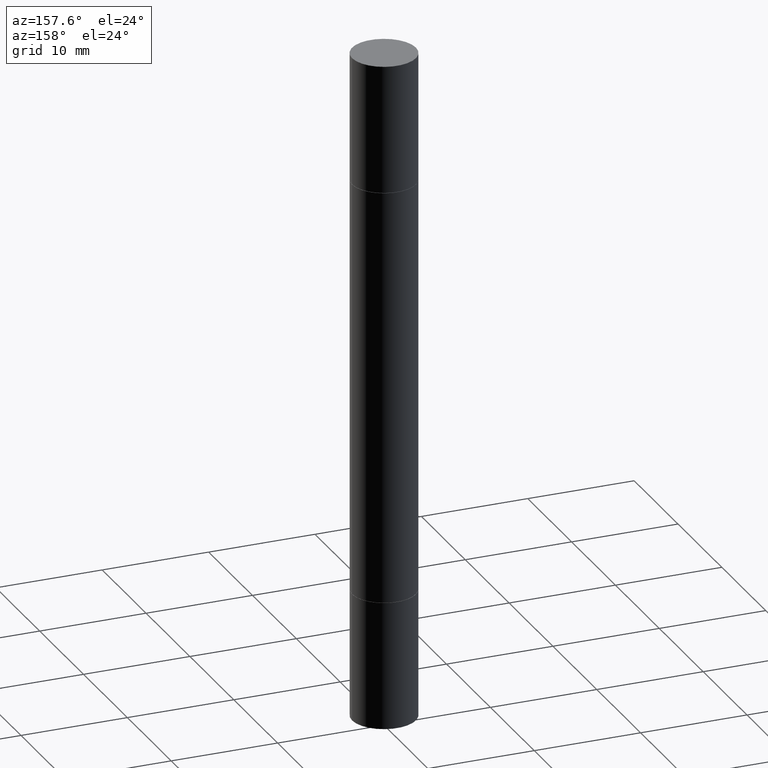
[diagram: clean part render]
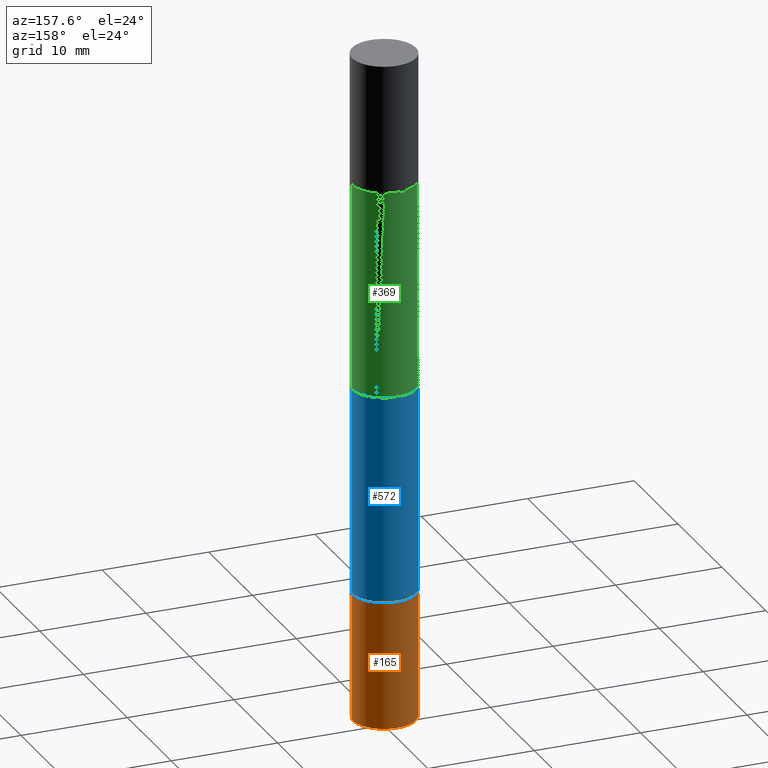
[diagram: same view with three faces highlighted in distinct colors, each labeled with its STEP entity id]
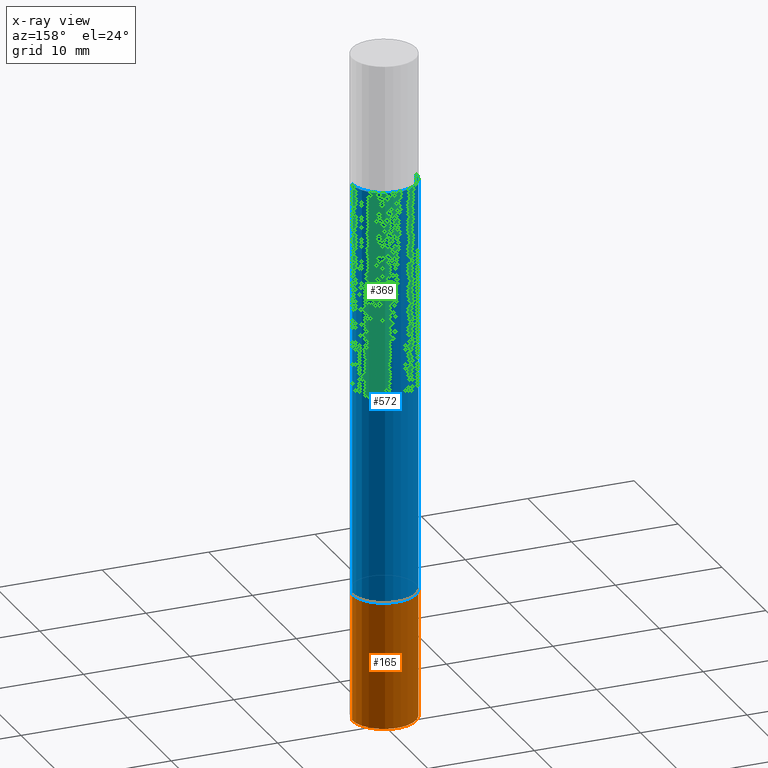
[diagram: x-ray of the same camera — body ghosted, the three highlighted faces saturated]
A machine part, auxiliary view with three faces highlighted in distinct colors.
The next image is the same camera in x-ray (body ghosted, the three faces saturated) — at least one of them is partly hidden behind the body in this view.
Their STEP definitions:

[orange] entity #165 — the highlighted cylindrical surface (edge-blend (fillet) strip) has radius 2.9997 mm, axis along (-0, 0, 1).
#55 = EDGE_CURVE ( 'NONE', #186, #389, #441, .T. ) ;
#103 = DIRECTION ( 'NONE',  ( 1.000000000000000000, -6.982962677686265133E-15, 0.000000000000000000 ) ) ;
#110 = ORIENTED_EDGE ( 'NONE', *, *, #537, .F. ) ;
#134 = VERTEX_POINT ( 'NONE', #655 ) ;
#142 = VERTEX_POINT ( 'NONE', #444 ) ;
#145 = CYLINDRICAL_SURFACE ( 'NONE', #428, 0.1180999999999999966 ) ;
#153 = AXIS2_PLACEMENT_3D ( 'NONE', #568, #675, #103 ) ;
#165 = ADVANCED_FACE ( 'NONE', ( #183 ), #145, .T. ) ;
#183 = FACE_OUTER_BOUND ( 'NONE', #236, .T. ) ;
#186 = VERTEX_POINT ( 'NONE', #562 ) ;
#206 = CARTESIAN_POINT ( 'NONE',  ( 0.1180999999999999966, -8.246878922347480654E-16, 5.758764772215000440E-30 ) ) ;
#236 = EDGE_LOOP ( 'NONE', ( #556, #288, #110, #511 ) ) ;
#244 = CIRCLE ( 'NONE', #518, 0.1180999999999999966 ) ;
#262 = VECTOR ( 'NONE', #419, 39.37007874015748143 ) ;
#282 = EDGE_CURVE ( 'NONE', #142, #134, #361, .T. ) ;
#286 = DIRECTION ( 'NONE',  ( -2.445468806185136597E-29, 3.491481338843145583E-15, 1.000000000000000000 ) ) ;
#288 = ORIENTED_EDGE ( 'NONE', *, *, #55, .T. ) ;
#353 = DIRECTION ( 'NONE',  ( 1.000000000000000000, -6.982962677686266711E-15, 4.876176775795936353E-29 ) ) ;
#361 = LINE ( 'NONE', #206, #262 ) ;
#389 = VERTEX_POINT ( 'NONE', #455 ) ;
#392 = CARTESIAN_POINT ( 'NONE',  ( 0.000000000000000000, 0.000000000000000000, 0.000000000000000000 ) ) ;
#419 = DIRECTION ( 'NONE',  ( -2.445468806185136877E-29, 3.491481338843145188E-15, 1.000000000000000000 ) ) ;
#427 = DIRECTION ( 'NONE',  ( -2.445468806185136597E-29, 3.491481338843145583E-15, 1.000000000000000000 ) ) ;
#428 = AXIS2_PLACEMENT_3D ( 'NONE', #392, #286, #353 ) ;
#441 = LINE ( 'NONE', #548, #629 ) ;
#444 = CARTESIAN_POINT ( 'NONE',  ( 0.1180999999999999966, -9.484609056967403598E-15, -2.480300000000000171 ) ) ;
#455 = CARTESIAN_POINT ( 'NONE',  ( -0.1180999999999999966, -6.996082301565225720E-15, -2.007900000000000240 ) ) ;
#461 = EDGE_CURVE ( 'NONE', #142, #186, #244, .T. ) ;
#477 = CARTESIAN_POINT ( 'NONE',  ( 6.065496279980994755E-29, -8.659921164732655335E-15, -2.480300000000000171 ) ) ;
#506 = DIRECTION ( 'NONE',  ( -2.445468806185136877E-29, 3.491481338843145188E-15, 1.000000000000000000 ) ) ;
#511 = ORIENTED_EDGE ( 'NONE', *, *, #282, .F. ) ;
#518 = AXIS2_PLACEMENT_3D ( 'NONE', #477, #427, #639 ) ;
#537 = EDGE_CURVE ( 'NONE', #134, #389, #667, .T. ) ;
#548 = CARTESIAN_POINT ( 'NONE',  ( -0.1180999999999999966, 8.391509709326782957E-16, -5.809262341591043784E-30 ) ) ;
#556 = ORIENTED_EDGE ( 'NONE', *, *, #461, .T. ) ;
#562 = CARTESIAN_POINT ( 'NONE',  ( -0.1180999999999999966, -6.996082301565225720E-15, -2.480300000000000171 ) ) ;
#568 = CARTESIAN_POINT ( 'NONE',  ( 4.910256815939136430E-29, -7.010545380263152499E-15, -2.007900000000000240 ) ) ;
#629 = VECTOR ( 'NONE', #506, 39.37007874015748143 ) ;
#639 = DIRECTION ( 'NONE',  ( 1.000000000000000000, -6.982962677686273021E-15, 0.000000000000000000 ) ) ;
#655 = CARTESIAN_POINT ( 'NONE',  ( 0.1180999999999999966, -7.835233272497900762E-15, -2.007900000000000240 ) ) ;
#667 = CIRCLE ( 'NONE', #153, 0.1180999999999999966 ) ;
#675 = DIRECTION ( 'NONE',  ( -2.445468806185136597E-29, 3.491481338843145583E-15, 1.000000000000000000 ) ) ;

[blue] entity #572 — the highlighted cylindrical surface (edge-blend (fillet) strip) has radius 2.9997 mm, axis along (-0, -0, -1).
#3 = CARTESIAN_POINT ( 'NONE',  ( 4.907811347132950827E-29, -7.007053898924308703E-15, -2.006899999999999906 ) ) ;
#17 = CARTESIAN_POINT ( 'NONE',  ( 0.1180999999999999966, -2.476474751543767778E-15, -0.4733999999999996544 ) ) ;
#23 = DIRECTION ( 'NONE',  ( -2.445468806185136597E-29, -3.492890411551752677E-15, -1.000000000000000000 ) ) ;
#64 = EDGE_CURVE ( 'NONE', #489, #509, #90, .T. ) ;
#90 = LINE ( 'NONE', #406, #170 ) ;
#93 = CARTESIAN_POINT ( 'NONE',  ( 4.907811347132950827E-29, -1.651786859309018332E-15, -0.4733999999999996544 ) ) ;
#101 = AXIS2_PLACEMENT_3D ( 'NONE', #3, #115, #366 ) ;
#115 = DIRECTION ( 'NONE',  ( -2.445468806185136597E-29, 3.491481338843145583E-15, 1.000000000000000000 ) ) ;
#137 = ORIENTED_EDGE ( 'NONE', *, *, #64, .T. ) ;
#146 = CIRCLE ( 'NONE', #101, 0.1180999999999999966 ) ;
#162 = LINE ( 'NONE', #381, #388 ) ;
#163 = CARTESIAN_POINT ( 'NONE',  ( 0.000000000000000000, -8.661668626252231138E-15, -2.480299999999999727 ) ) ;
#170 = VECTOR ( 'NONE', #468, 39.37007874015748143 ) ;
#172 = AXIS2_PLACEMENT_3D ( 'NONE', #93, #449, #665 ) ;
#197 = EDGE_LOOP ( 'NONE', ( #306, #336, #137, #437 ) ) ;
#219 = CARTESIAN_POINT ( 'NONE',  ( 0.1180999999999999966, -7.831741791159056177E-15, -2.006899999999999906 ) ) ;
#222 = EDGE_CURVE ( 'NONE', #489, #300, #579, .T. ) ;
#249 = EDGE_CURVE ( 'NONE', #509, #439, #146, .T. ) ;
#265 = FACE_OUTER_BOUND ( 'NONE', #197, .T. ) ;
#300 = VERTEX_POINT ( 'NONE', #322 ) ;
#306 = ORIENTED_EDGE ( 'NONE', *, *, #582, .F. ) ;
#322 = CARTESIAN_POINT ( 'NONE',  ( -0.1180999999999999966, -8.415620457722018772E-16, -0.4733999999999996544 ) ) ;
#330 = DIRECTION ( 'NONE',  ( -2.445468806185136877E-29, -3.492890411551753071E-15, -1.000000000000000000 ) ) ;
#336 = ORIENTED_EDGE ( 'NONE', *, *, #222, .F. ) ;
#366 = DIRECTION ( 'NONE',  ( 1.000000000000000000, -6.982962677686265133E-15, 0.000000000000000000 ) ) ;
#381 = CARTESIAN_POINT ( 'NONE',  ( -0.1180999999999998856, -7.851443812715415176E-15, -2.480299999999999727 ) ) ;
#388 = VECTOR ( 'NONE', #330, 39.37007874015748143 ) ;
#406 = CARTESIAN_POINT ( 'NONE',  ( 0.1180999999999998856, -9.486356518486979401E-15, -2.480299999999999727 ) ) ;
#437 = ORIENTED_EDGE ( 'NONE', *, *, #249, .T. ) ;
#439 = VERTEX_POINT ( 'NONE', #644 ) ;
#449 = DIRECTION ( 'NONE',  ( 2.445468806185136597E-29, 3.492890411551752677E-15, 1.000000000000000000 ) ) ;
#466 = AXIS2_PLACEMENT_3D ( 'NONE', #163, #23, #479 ) ;
#468 = DIRECTION ( 'NONE',  ( -2.445468806185136877E-29, -3.492890411551753071E-15, -1.000000000000000000 ) ) ;
#479 = DIRECTION ( 'NONE',  ( 1.000000000000000000, -6.982962677686271444E-15, 0.000000000000000000 ) ) ;
#489 = VERTEX_POINT ( 'NONE', #17 ) ;
#509 = VERTEX_POINT ( 'NONE', #219 ) ;
#572 = ADVANCED_FACE ( 'NONE', ( #265 ), #643, .T. ) ;
#579 = CIRCLE ( 'NONE', #172, 0.1180999999999999966 ) ;
#582 = EDGE_CURVE ( 'NONE', #300, #439, #162, .T. ) ;
#643 = CYLINDRICAL_SURFACE ( 'NONE', #466, 0.1180999999999998856 ) ;
#644 = CARTESIAN_POINT ( 'NONE',  ( -0.1181000000000000105, -3.519735768829505001E-15, -2.006899999999999906 ) ) ;
#665 = DIRECTION ( 'NONE',  ( 1.000000000000000000, -6.982962677686265133E-15, 0.000000000000000000 ) ) ;

[green] entity #369 — the highlighted cylindrical surface (edge-blend (fillet) strip) has radius 2.9997 mm, axis along (-0, -0, -1).
#18 = LINE ( 'NONE', #70, #666 ) ;
#45 = CYLINDRICAL_SURFACE ( 'NONE', #356, 0.1180999999999998856 ) ;
#70 = CARTESIAN_POINT ( 'NONE',  ( 0.1180999999999998856, -9.486356518486979401E-15, -2.480299999999999727 ) ) ;
#74 = ORIENTED_EDGE ( 'NONE', *, *, #648, .T. ) ;
#88 = EDGE_CURVE ( 'NONE', #246, #546, #433, .T. ) ;
#100 = CARTESIAN_POINT ( 'NONE',  ( -0.1180999999999998856, -2.180648907300854672E-15, -1.240149999999999864 ) ) ;
#132 = DIRECTION ( 'NONE',  ( 0.000000000000000000, 1.000000000000000000, -4.626330217890374069E-15 ) ) ;
#133 = EDGE_CURVE ( 'NONE', #404, #259, #135, .T. ) ;
#135 = CIRCLE ( 'NONE', #275, 0.1180999999999998856 ) ;
#179 = ORIENTED_EDGE ( 'NONE', *, *, #471, .F. ) ;
#188 = FACE_OUTER_BOUND ( 'NONE', #251, .T. ) ;
#195 = CARTESIAN_POINT ( 'NONE',  ( 3.032748139990496817E-29, -4.329960582366326879E-15, -1.240149999999999864 ) ) ;
#228 = DIRECTION ( 'NONE',  ( -2.445468806185136877E-29, -3.492890411551753071E-15, -1.000000000000000000 ) ) ;
#245 = DIRECTION ( 'NONE',  ( -2.445468806185136597E-29, -3.492890411551752677E-15, -1.000000000000000000 ) ) ;
#246 = VERTEX_POINT ( 'NONE', #525 ) ;
#251 = EDGE_LOOP ( 'NONE', ( #179, #316, #74, #391 ) ) ;
#259 = VERTEX_POINT ( 'NONE', #626 ) ;
#273 = CARTESIAN_POINT ( 'NONE',  ( 4.907811347132950827E-29, -1.651786859309018332E-15, -0.4733999999999996544 ) ) ;
#275 = AXIS2_PLACEMENT_3D ( 'NONE', #195, #396, #132 ) ;
#276 = CARTESIAN_POINT ( 'NONE',  ( -0.1180999999999999966, -8.415620457722018772E-16, -0.4733999999999996544 ) ) ;
#299 = CARTESIAN_POINT ( 'NONE',  ( 0.000000000000000000, -8.661668626252231138E-15, -2.480299999999999727 ) ) ;
#314 = VECTOR ( 'NONE', #431, 39.37007874015748143 ) ;
#316 = ORIENTED_EDGE ( 'NONE', *, *, #88, .F. ) ;
#326 = LINE ( 'NONE', #372, #314 ) ;
#356 = AXIS2_PLACEMENT_3D ( 'NONE', #299, #245, #390 ) ;
#369 = ADVANCED_FACE ( 'NONE', ( #188 ), #45, .T. ) ;
#372 = CARTESIAN_POINT ( 'NONE',  ( -0.1180999999999998856, -7.851443812715415176E-15, -2.480299999999999727 ) ) ;
#390 = DIRECTION ( 'NONE',  ( 1.000000000000000000, -6.982962677686271444E-15, 0.000000000000000000 ) ) ;
#391 = ORIENTED_EDGE ( 'NONE', *, *, #133, .F. ) ;
#396 = DIRECTION ( 'NONE',  ( -0.000000000000000000, -3.492185875197449130E-15, -1.000000000000000000 ) ) ;
#404 = VERTEX_POINT ( 'NONE', #100 ) ;
#431 = DIRECTION ( 'NONE',  ( -2.445468806185136877E-29, -3.492890411551753071E-15, -1.000000000000000000 ) ) ;
#433 = CIRCLE ( 'NONE', #620, 0.1180999999999999966 ) ;
#471 = EDGE_CURVE ( 'NONE', #546, #404, #326, .T. ) ;
#483 = DIRECTION ( 'NONE',  ( 2.445468806185136597E-29, 3.492890411551752677E-15, 1.000000000000000000 ) ) ;
#525 = CARTESIAN_POINT ( 'NONE',  ( 0.1180999999999999966, -2.476474751543767778E-15, -0.4733999999999996544 ) ) ;
#546 = VERTEX_POINT ( 'NONE', #276 ) ;
#591 = DIRECTION ( 'NONE',  ( 1.000000000000000000, -6.982962677686265133E-15, 0.000000000000000000 ) ) ;
#620 = AXIS2_PLACEMENT_3D ( 'NONE', #273, #483, #591 ) ;
#626 = CARTESIAN_POINT ( 'NONE',  ( 0.1180999999999998856, -3.815561613072418896E-15, -1.240149999999999864 ) ) ;
#648 = EDGE_CURVE ( 'NONE', #246, #259, #18, .T. ) ;
#666 = VECTOR ( 'NONE', #228, 39.37007874015748143 ) ;